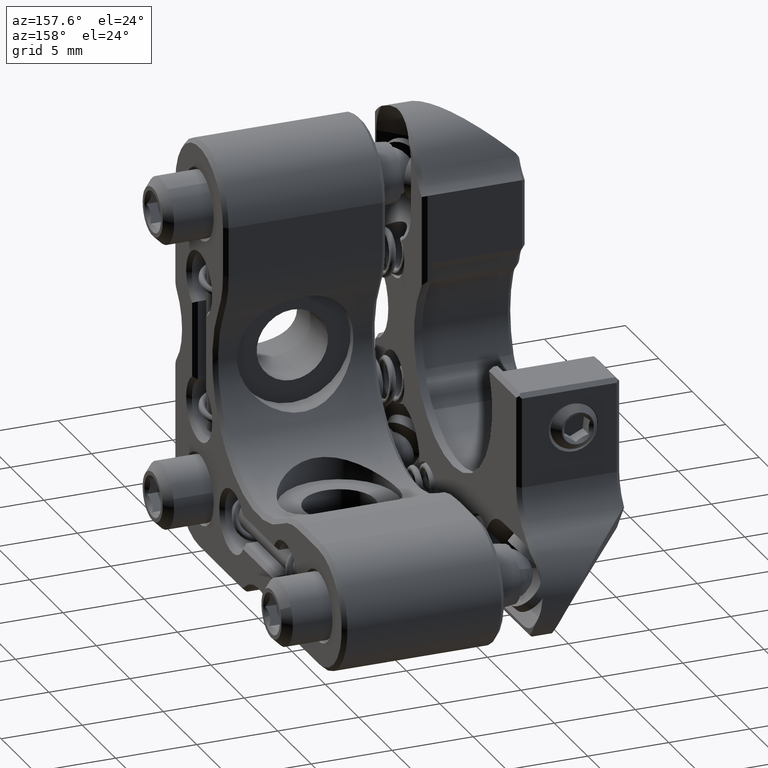
[diagram: clean part render]
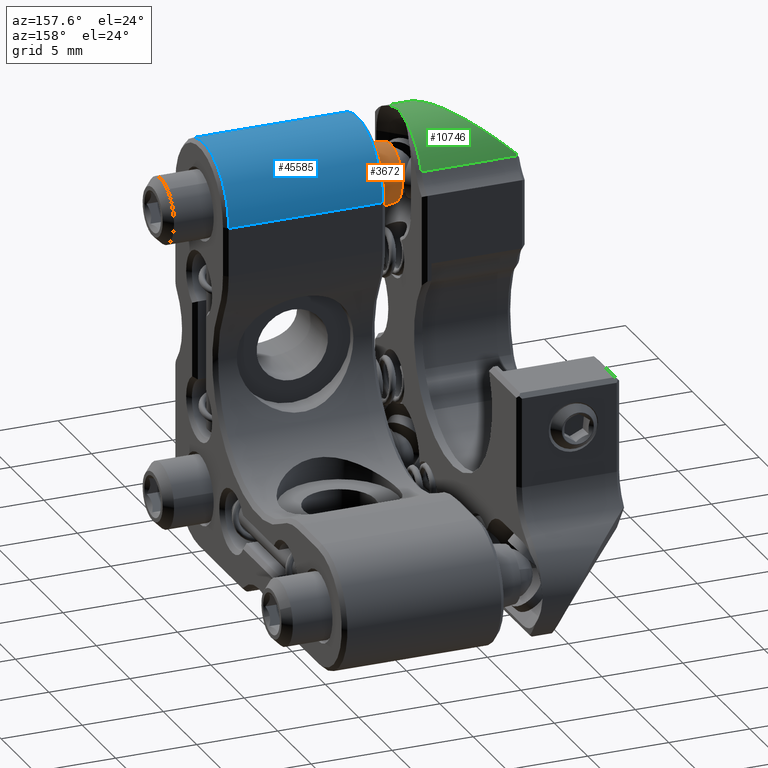
[diagram: same view with three faces highlighted in distinct colors, each labeled with its STEP entity id]
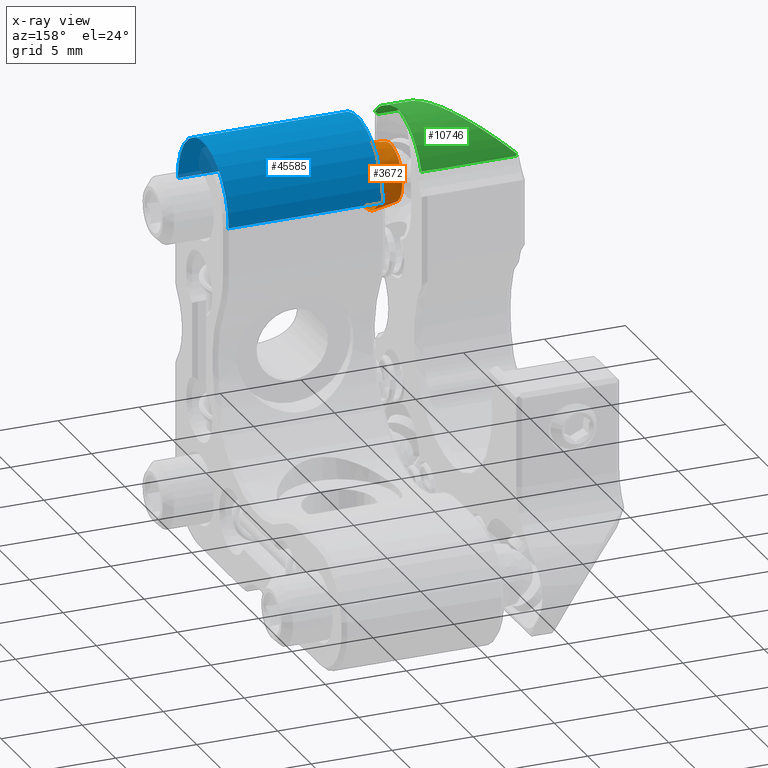
[diagram: x-ray of the same camera — body ghosted, the three highlighted faces saturated]
A machine part, auxiliary view with three faces highlighted in distinct colors.
The next image is the same camera in x-ray (body ghosted, the three faces saturated) — at least one of them is partly hidden behind the body in this view.
Their STEP definitions:

[orange] entity #3672 — the highlighted conical surface has half-angle 9.462 deg.
#272 = CARTESIAN_POINT ( 'NONE',  ( -5.308831175456987239, -7.889759476303475516, 10.62191191887904651 ) ) ;
#1558 = CIRCLE ( 'NONE', #23149, 1.749999999996514344 ) ;
#2336 = CONICAL_SURFACE ( 'NONE', #29341, 1.999999999981128429, 0.1651486774084816034 ) ;
#2734 = EDGE_CURVE ( 'NONE', #16380, #16380, #33508, .T. ) ;
#3672 = ADVANCED_FACE ( 'NONE', ( #42419, #27407 ), #2336, .T. ) ;
#5191 = DIRECTION ( 'NONE',  ( 0.000000000000000000, -0.5001202618482638584, -0.8659559594395225268 ) ) ;
#5665 = DIRECTION ( 'NONE',  ( 1.000000000000000000, 0.000000000000000000, 0.000000000000000000 ) ) ;
#7230 = CARTESIAN_POINT ( 'NONE',  ( -6.808831175457025431, -8.890000000000004121, 8.890000000000002345 ) ) ;
#7877 = VERTEX_POINT ( 'NONE', #30346 ) ;
#16380 = VERTEX_POINT ( 'NONE', #272 ) ;
#23149 = AXIS2_PLACEMENT_3D ( 'NONE', #7230, #34529, #27493 ) ;
#24790 = EDGE_LOOP ( 'NONE', ( #36290 ) ) ;
#27407 = FACE_BOUND ( 'NONE', #37249, .T. ) ;
#27493 = DIRECTION ( 'NONE',  ( 0.000000000000000000, -0.5001202618482639695, -0.8659559594395224158 ) ) ;
#29341 = AXIS2_PLACEMENT_3D ( 'NONE', #38305, #5665, #5191 ) ;
#29855 = DIRECTION ( 'NONE',  ( 0.000000000000000000, 0.5001202618482641915, 0.8659559594395225268 ) ) ;
#29966 = EDGE_CURVE ( 'NONE', #7877, #7877, #1558, .T. ) ;
#30346 = CARTESIAN_POINT ( 'NONE',  ( -6.808831175457025431, -9.765210458232722601, 7.374577070983856508 ) ) ;
#33257 = DIRECTION ( 'NONE',  ( 1.000000000000000000, 0.000000000000000000, -0.000000000000000000 ) ) ;
#33487 = CARTESIAN_POINT ( 'NONE',  ( -5.308831175456987239, -8.890000000000004121, 8.890000000000002345 ) ) ;
#33508 = CIRCLE ( 'NONE', #35830, 2.000000000000000000 ) ;
#34529 = DIRECTION ( 'NONE',  ( 1.000000000000000000, 0.000000000000000000, 0.000000000000000000 ) ) ;
#35830 = AXIS2_PLACEMENT_3D ( 'NONE', #33487, #33257, #29855 ) ;
#36290 = ORIENTED_EDGE ( 'NONE', *, *, #2734, .F. ) ;
#37249 = EDGE_LOOP ( 'NONE', ( #46590 ) ) ;
#38305 = CARTESIAN_POINT ( 'NONE',  ( -5.308831175492495724, -8.890000000000004121, 8.890000000000002345 ) ) ;
#42419 = FACE_OUTER_BOUND ( 'NONE', #24790, .T. ) ;
#46590 = ORIENTED_EDGE ( 'NONE', *, *, #29966, .T. ) ;

[blue] entity #45585 — the highlighted cylindrical surface (partial cylindrical patch) has radius 3.81 mm, axis along (-1, 0, 0).
#120 = EDGE_CURVE ( 'NONE', #45283, #37452, #9784, .T. ) ;
#567 = FACE_OUTER_BOUND ( 'NONE', #20228, .T. ) ;
#693 = LINE ( 'NONE', #15899, #44359 ) ;
#749 = DIRECTION ( 'NONE',  ( 0.000000000000000000, 0.000000000000000000, 1.000000000000000000 ) ) ;
#1466 = DIRECTION ( 'NONE',  ( 0.000000000000000000, 0.000000000000000000, -1.000000000000000000 ) ) ;
#1761 = DIRECTION ( 'NONE',  ( 0.000000000000000000, 0.000000000000000000, 1.000000000000000000 ) ) ;
#3772 = VECTOR ( 'NONE', #17978, 1000.000000000000000 ) ;
#4433 = CYLINDRICAL_SURFACE ( 'NONE', #17569, 3.810000000000000941 ) ;
#9784 = LINE ( 'NONE', #39511, #3772 ) ;
#10421 = VERTEX_POINT ( 'NONE', #23959 ) ;
#11554 = VERTEX_POINT ( 'NONE', #15471 ) ;
#13453 = ORIENTED_EDGE ( 'NONE', *, *, #39735, .T. ) ;
#15471 = CARTESIAN_POINT ( 'NONE',  ( -4.750000000000338396, -12.69999999999479101, 8.889999999999997016 ) ) ;
#15899 = CARTESIAN_POINT ( 'NONE',  ( 5.000000000000000000, -12.70000000000000284, 8.889999999999998792 ) ) ;
#16977 = CARTESIAN_POINT ( 'NONE',  ( 5.000000000000000000, -8.890000000000002345, 8.889999999999998792 ) ) ;
#17569 = AXIS2_PLACEMENT_3D ( 'NONE', #16977, #42379, #1761 ) ;
#17978 = DIRECTION ( 'NONE',  ( -1.000000000000000000, -0.000000000000000000, -0.000000000000000000 ) ) ;
#18393 = CARTESIAN_POINT ( 'NONE',  ( 4.749999999999992895, -8.890000000000002345, 8.889999999999998792 ) ) ;
#19285 = DIRECTION ( 'NONE',  ( 1.000000000000000000, 0.000000000000000000, 0.000000000000000000 ) ) ;
#19820 = CARTESIAN_POINT ( 'NONE',  ( -4.750000000001364242, -8.890000000000002345, 8.889999999999998792 ) ) ;
#20228 = EDGE_LOOP ( 'NONE', ( #13453, #25278, #46358, #33431 ) ) ;
#21173 = AXIS2_PLACEMENT_3D ( 'NONE', #19820, #34584, #1466 ) ;
#23959 = CARTESIAN_POINT ( 'NONE',  ( 4.749999999999992895, -12.70000000000000284, 8.889999999999998792 ) ) ;
#24288 = CARTESIAN_POINT ( 'NONE',  ( 4.750000000000336620, -5.080000000019424533, 8.889999999999997016 ) ) ;
#24761 = CARTESIAN_POINT ( 'NONE',  ( -4.750000000001022293, -5.080000000010425509, 8.889999999999995239 ) ) ;
#25268 = AXIS2_PLACEMENT_3D ( 'NONE', #18393, #33148, #749 ) ;
#25278 = ORIENTED_EDGE ( 'NONE', *, *, #25809, .T. ) ;
#25809 = EDGE_CURVE ( 'NONE', #10421, #45283, #39205, .T. ) ;
#31995 = CIRCLE ( 'NONE', #21173, 3.809999999979153174 ) ;
#33148 = DIRECTION ( 'NONE',  ( -1.000000000000000000, 0.000000000000000000, 0.000000000000000000 ) ) ;
#33431 = ORIENTED_EDGE ( 'NONE', *, *, #38488, .F. ) ;
#34584 = DIRECTION ( 'NONE',  ( -1.000000000000000000, -0.000000000000000000, -0.000000000000000000 ) ) ;
#37452 = VERTEX_POINT ( 'NONE', #24761 ) ;
#38488 = EDGE_CURVE ( 'NONE', #11554, #37452, #31995, .T. ) ;
#39205 = CIRCLE ( 'NONE', #25268, 3.810000000000000941 ) ;
#39511 = CARTESIAN_POINT ( 'NONE',  ( -5.000000000000000000, -5.080000000000003624, 8.889999999999997016 ) ) ;
#39735 = EDGE_CURVE ( 'NONE', #11554, #10421, #693, .T. ) ;
#42379 = DIRECTION ( 'NONE',  ( -1.000000000000000000, 0.000000000000000000, 0.000000000000000000 ) ) ;
#44359 = VECTOR ( 'NONE', #19285, 1000.000000000000000 ) ;
#45283 = VERTEX_POINT ( 'NONE', #24288 ) ;
#45585 = ADVANCED_FACE ( 'NONE', ( #567 ), #4433, .T. ) ;
#46358 = ORIENTED_EDGE ( 'NONE', *, *, #120, .T. ) ;

[green] entity #10746 — the highlighted cylindrical surface (partial cylindrical patch) has radius 3.81 mm, axis along (-1, 0, 0).
#864 = LINE ( 'NONE', #45352, #37375 ) ;
#1223 = CARTESIAN_POINT ( 'NONE',  ( -7.279798267090342279, -9.298470290132000216, 12.68443315418044293 ) ) ;
#1389 = CARTESIAN_POINT ( 'NONE',  ( -7.000000000000001776, -11.68999999999997819, 11.47381500885789762 ) ) ;
#1866 = VERTEX_POINT ( 'NONE', #1389 ) ;
#2192 = LINE ( 'NONE', #12819, #21444 ) ;
#2525 = CARTESIAN_POINT ( 'NONE',  ( -10.91503277499793079, -6.870144835519499615, 12.12389229928446355 ) ) ;
#2766 = CARTESIAN_POINT ( 'NONE',  ( -10.15724776907853766, -7.691349513042704977, 12.52078942497383807 ) ) ;
#3234 = CARTESIAN_POINT ( 'NONE',  ( -9.811147995964111246, -8.160223810957242918, 12.63290668111049264 ) ) ;
#3757 = CARTESIAN_POINT ( 'NONE',  ( -7.171845779508853269, -11.86184577950882968, 11.27772679506061237 ) ) ;
#3986 = EDGE_CURVE ( 'NONE', #4515, #46794, #41788, .T. ) ;
#4515 = VERTEX_POINT ( 'NONE', #36885 ) ;
#4866 = EDGE_CURVE ( 'NONE', #1866, #38603, #14270, .T. ) ;
#5452 = CARTESIAN_POINT ( 'NONE',  ( -7.249999999998816946, -5.344485670068753080, 10.28478605388370859 ) ) ;
#6670 = CARTESIAN_POINT ( 'NONE',  ( -7.250000000000025757, -11.94000000000000306, 11.17333090024185971 ) ) ;
#6901 = CARTESIAN_POINT ( 'NONE',  ( -7.000000000000001776, -11.68999999999997819, 11.47381500885789762 ) ) ;
#7010 = CARTESIAN_POINT ( 'NONE',  ( -7.250000000007094769, -8.204729652703155907, 12.63786666664723590 ) ) ;
#7499 = CARTESIAN_POINT ( 'NONE',  ( -13.35000000000000142, -8.890000000000007674, 8.889999999999842473 ) ) ;
#8964 = EDGE_CURVE ( 'NONE', #21020, #1866, #25935, .T. ) ;
#9456 = CARTESIAN_POINT ( 'NONE',  ( -13.09999999999999076, -5.363044880569893813, 10.33196314364081481 ) ) ;
#9532 = CARTESIAN_POINT ( 'NONE',  ( -11.17908811059965402, -6.626073529886143731, 11.95798162099575457 ) ) ;
#9772 = CARTESIAN_POINT ( 'NONE',  ( -13.10767460866675904, -5.403075257491882333, 10.42540087276390359 ) ) ;
#10483 = CARTESIAN_POINT ( 'NONE',  ( -8.483879293265577104, -11.25296339506441790, 11.88524538833256905 ) ) ;
#10746 = ADVANCED_FACE ( 'NONE', ( #26096 ), #15229, .T. ) ;
#11568 = AXIS2_PLACEMENT_3D ( 'NONE', #7499, #33368, #37233 ) ;
#11643 = CIRCLE ( 'NONE', #38662, 3.809999999999999165 ) ;
#12819 = CARTESIAN_POINT ( 'NONE',  ( -13.35000000000000142, -11.94000000000000306, 11.17333090024185971 ) ) ;
#13164 = DIRECTION ( 'NONE',  ( 0.000000000000000000, -1.000000000000000000, -4.553079989440439683E-16 ) ) ;
#13314 = CARTESIAN_POINT ( 'NONE',  ( -13.09999999999999076, -5.344485670048110038, 10.28478605388256995 ) ) ;
#13392 = CARTESIAN_POINT ( 'NONE',  ( -9.098901345686694953, -9.350521429901458959, 12.67638053571431378 ) ) ;
#13871 = CARTESIAN_POINT ( 'NONE',  ( -8.932866779902733256, -9.706835081813490973, 12.61579360643520786 ) ) ;
#14270 = CIRCLE ( 'NONE', #39781, 3.809999999999999165 ) ;
#15229 = CYLINDRICAL_SURFACE ( 'NONE', #11568, 3.809999999999999165 ) ;
#15958 = CARTESIAN_POINT ( 'NONE',  ( -7.275366453791953347, -8.422079106716449104, 12.67760744431039655 ) ) ;
#17021 = CARTESIAN_POINT ( 'NONE',  ( -8.497418458155918231, -11.94000005421195887, 11.17333082782726805 ) ) ;
#17496 = CARTESIAN_POINT ( 'NONE',  ( -12.82657743614821833, -5.516583065916431217, 10.68317928031761532 ) ) ;
#17732 = CARTESIAN_POINT ( 'NONE',  ( -12.54429180755184703, -5.658420303444831490, 10.92769976922322606 ) ) ;
#17967 = CARTESIAN_POINT ( 'NONE',  ( -8.724587789762393797, -10.24066170067738568, 12.45745877439278715 ) ) ;
#18465 = VERTEX_POINT ( 'NONE', #27856 ) ;
#19748 = ORIENTED_EDGE ( 'NONE', *, *, #28433, .T. ) ;
#20057 = CARTESIAN_POINT ( 'NONE',  ( -7.000000000001316280, -10.73158334013520410, 12.22536666670029604 ) ) ;
#20288 = CARTESIAN_POINT ( 'NONE',  ( -7.233514627137680009, -9.732815373437148310, 12.61212750799355042 ) ) ;
#21020 = VERTEX_POINT ( 'NONE', #24413 ) ;
#21109 = CARTESIAN_POINT ( 'NONE',  ( -10.78367658467635337, -6.999581974744052637, 12.20138785542683024 ) ) ;
#21444 = VECTOR ( 'NONE', #27553, 1000.000000000000000 ) ;
#21551 = CARTESIAN_POINT ( 'NONE',  ( -7.249999999999998224, -8.890000000000007674, 8.889999999999842473 ) ) ;
#21650 = CARTESIAN_POINT ( 'NONE',  ( -13.10767460866675904, -5.403075257491882333, 10.42540087276390359 ) ) ;
#21973 = ORIENTED_EDGE ( 'NONE', *, *, #3986, .F. ) ;
#23210 = CARTESIAN_POINT ( 'NONE',  ( -7.198778383177590889, -9.944740639532891890, 12.55737358442151219 ) ) ;
#23555 = DIRECTION ( 'NONE',  ( -1.000000000000000000, 0.000000000000000000, 0.000000000000000000 ) ) ;
#24413 = CARTESIAN_POINT ( 'NONE',  ( -7.250000000000025757, -11.94000000000000306, 11.17333090024185971 ) ) ;
#24564 = B_SPLINE_CURVE_WITH_KNOTS ( 'NONE', 3,
 ( #13314, #9456, #31924, #43061 ),
 .UNSPECIFIED., .F., .F.,
 ( 4, 4 ),
 ( 0.000000000000000000, 1.000000000000000000 ),
 .UNSPECIFIED. ) ;
#24977 = CARTESIAN_POINT ( 'NONE',  ( -9.382183031916341065, -8.825969060422741208, 12.70340233173187627 ) ) ;
#25211 = CARTESIAN_POINT ( 'NONE',  ( -9.698300205051905820, -8.323489334354158942, 12.66135999479621610 ) ) ;
#25935 =( BOUNDED_CURVE ( )  B_SPLINE_CURVE ( 3, ( #6670, #3757, #43664, #6901 ),
 .UNSPECIFIED., .F., .T. ) 
 B_SPLINE_CURVE_WITH_KNOTS ( ( 4, 4 ),
 ( 0.6426257071574917878, 0.7452651143671246148 ),
 .UNSPECIFIED. ) 
 CURVE ( )  GEOMETRIC_REPRESENTATION_ITEM ( )  RATIONAL_B_SPLINE_CURVE ( ( 1.000000000000000000, 0.9991222886692450178, 0.9991222886692450178, 1.000000000000000000 ) ) 
 REPRESENTATION_ITEM ( '' )  );
#26096 = FACE_OUTER_BOUND ( 'NONE', #46318, .T. ) ;
#26113 = ORIENTED_EDGE ( 'NONE', *, *, #26391, .T. ) ;
#26391 = EDGE_CURVE ( 'NONE', #38603, #35759, #43265, .T. ) ;
#26826 = CARTESIAN_POINT ( 'NONE',  ( -7.250000000007094769, -8.204729652703155907, 12.63786666664723590 ) ) ;
#27174 = CARTESIAN_POINT ( 'NONE',  ( -7.000000000000001776, -8.890000000000007674, 8.889999999999842473 ) ) ;
#27553 = DIRECTION ( 'NONE',  ( 1.000000000000000000, -0.000000000000000000, -0.000000000000000000 ) ) ;
#27856 = CARTESIAN_POINT ( 'NONE',  ( -13.09999999999999076, -5.344485670048110038, 10.28478605388256995 ) ) ;
#27893 = CARTESIAN_POINT ( 'NONE',  ( -11.31221132091368098, -6.510924265241684772, 11.86937918357350519 ) ) ;
#28130 = CARTESIAN_POINT ( 'NONE',  ( -9.189949781666786777, -9.172452105601760053, 12.69346659153493739 ) ) ;
#28374 = CARTESIAN_POINT ( 'NONE',  ( -8.666231931144158906, -10.41944353600201545, 12.38484321579276859 ) ) ;
#28433 = EDGE_CURVE ( 'NONE', #4515, #21020, #2192, .T. ) ;
#28614 = CARTESIAN_POINT ( 'NONE',  ( -10.40053484018271313, -7.402192709007719529, 12.41051257944025288 ) ) ;
#28668 = ORIENTED_EDGE ( 'NONE', *, *, #36472, .T. ) ;
#29877 = DIRECTION ( 'NONE',  ( -1.000000000000000000, 0.000000000000000000, 0.000000000000000000 ) ) ;
#31424 = CARTESIAN_POINT ( 'NONE',  ( -7.111922036731954222, -10.34969658689266403, 12.41581801836239940 ) ) ;
#31770 = CARTESIAN_POINT ( 'NONE',  ( -8.535058140494925283, -10.93066528367338641, 12.11347268372977481 ) ) ;
#31924 = CARTESIAN_POINT ( 'NONE',  ( -13.10255819547856326, -5.382576827847017853, 10.37884854780039312 ) ) ;
#32007 = CARTESIAN_POINT ( 'NONE',  ( -8.857807958358876022, -9.884922426136672158, 12.57255054312077291 ) ) ;
#32044 = EDGE_CURVE ( 'NONE', #35759, #37293, #11643, .T. ) ;
#32546 = ORIENTED_EDGE ( 'NONE', *, *, #8964, .T. ) ;
#33368 = DIRECTION ( 'NONE',  ( -1.000000000000000000, 0.000000000000000000, 0.000000000000000000 ) ) ;
#33403 = DIRECTION ( 'NONE',  ( 0.000000000000000000, -1.000000000000000000, -4.553079989440439683E-16 ) ) ;
#34583 = CARTESIAN_POINT ( 'NONE',  ( -7.288882875971419928, -8.643147745203677346, 12.69827958022965753 ) ) ;
#35207 = EDGE_CURVE ( 'NONE', #18465, #46794, #24564, .T. ) ;
#35759 = VERTEX_POINT ( 'NONE', #7010 ) ;
#35880 = CARTESIAN_POINT ( 'NONE',  ( -8.571776447358177009, -10.76377513963147692, 12.21296454373051787 ) ) ;
#36115 = CARTESIAN_POINT ( 'NONE',  ( -9.483958385201407992, -8.656246436083490536, 12.69650099382571540 ) ) ;
#36472 = EDGE_CURVE ( 'NONE', #37293, #18465, #864, .T. ) ;
#36789 = DIRECTION ( 'NONE',  ( -1.000000000000000000, 0.000000000000000000, 0.000000000000000000 ) ) ;
#36885 = CARTESIAN_POINT ( 'NONE',  ( -8.497418458155918231, -11.94000005421195887, 11.17333082782726805 ) ) ;
#37233 = DIRECTION ( 'NONE',  ( 0.000000000000000000, -1.000000000000000000, -4.553079989440439683E-16 ) ) ;
#37293 = VERTEX_POINT ( 'NONE', #5452 ) ;
#37375 = VECTOR ( 'NONE', #29877, 1000.000000000000000 ) ;
#37966 = CARTESIAN_POINT ( 'NONE',  ( -7.290981983585332671, -9.080534458642921081, 12.70151230051299507 ) ) ;
#38603 = VERTEX_POINT ( 'NONE', #20057 ) ;
#38662 = AXIS2_PLACEMENT_3D ( 'NONE', #21551, #36789, #33403 ) ;
#39033 = ORIENTED_EDGE ( 'NONE', *, *, #4866, .T. ) ;
#39781 = AXIS2_PLACEMENT_3D ( 'NONE', #27174, #23555, #13164 ) ;
#40279 = ORIENTED_EDGE ( 'NONE', *, *, #32044, .T. ) ;
#41788 = B_SPLINE_CURVE_WITH_KNOTS ( 'NONE', 3,
 ( #17021, #43384, #43617, #46535, #10483, #31770, #35880, #28374, #17967, #32007, #13871, #13392, #28130, #24977, #36115, #25211, #3234, #2766, #28614, #21109, #2525, #9532, #27893, #46298, #42894, #17732, #17496, #9772 ),
 .UNSPECIFIED., .F., .F.,
 ( 4, 2, 2, 2, 2, 2, 2, 2, 2, 2, 2, 2, 2, 4 ),
 ( 8.964682040491793298E-11, 0.0005924033297749685357, 0.001184806569903116506, 0.001777209810031264801, 0.002369613050159412662, 0.002962016290287560957, 0.003554419530415709252, 0.004146822770543857548, 0.004739226010672004975, 0.005924032490928305035, 0.006516435731056454198, 0.007108838971184605095, 0.008293645451440911226, 0.009478451931697216490 ),
 .UNSPECIFIED. ) ;
#42553 = CARTESIAN_POINT ( 'NONE',  ( -7.059634572885318704, -10.54437188937266434, 12.32873325972821732 ) ) ;
#42894 = CARTESIAN_POINT ( 'NONE',  ( -11.98809318962949710, -5.992951098015496747, 11.38046890046638460 ) ) ;
#43061 = CARTESIAN_POINT ( 'NONE',  ( -13.10767460866675904, -5.403075257491882333, 10.42540087276390359 ) ) ;
#43265 = B_SPLINE_CURVE_WITH_KNOTS ( 'NONE', 3,
 ( #46193, #42553, #31424, #23210, #20288, #1223, #37966, #34583, #15958, #26826 ),
 .UNSPECIFIED., .F., .F.,
 ( 4, 2, 2, 2, 4 ),
 ( 6.446654655460141987E-14, 0.0006565035275848867067, 0.001313007055105306752, 0.001969510582625727015, 0.002626014110146147277 ),
 .UNSPECIFIED. ) ;
#43384 = CARTESIAN_POINT ( 'NONE',  ( -8.475620748330873866, -11.82058580499704803, 11.33284055815847147 ) ) ;
#43617 = CARTESIAN_POINT ( 'NONE',  ( -8.465904879652375925, -11.68999220047859389, 11.48136150932254296 ) ) ;
#43664 = CARTESIAN_POINT ( 'NONE',  ( -7.088439239310119433, -11.77843923931009762, 11.37797615459805733 ) ) ;
#44171 = ORIENTED_EDGE ( 'NONE', *, *, #35207, .T. ) ;
#45352 = CARTESIAN_POINT ( 'NONE',  ( -13.35000000000000142, -5.344485670048110038, 10.28478605388257172 ) ) ;
#46193 = CARTESIAN_POINT ( 'NONE',  ( -7.000000000001316280, -10.73158334013520410, 12.22536666670029604 ) ) ;
#46298 = CARTESIAN_POINT ( 'NONE',  ( -11.71500530913827909, -6.184793091120232233, 11.58821464399330203 ) ) ;
#46318 = EDGE_LOOP ( 'NONE', ( #19748, #32546, #39033, #26113, #40279, #28668, #44171, #21973 ) ) ;
#46535 = CARTESIAN_POINT ( 'NONE',  ( -8.469880974401036156, -11.40702928869277244, 11.75699744586597184 ) ) ;
#46794 = VERTEX_POINT ( 'NONE', #21650 ) ;